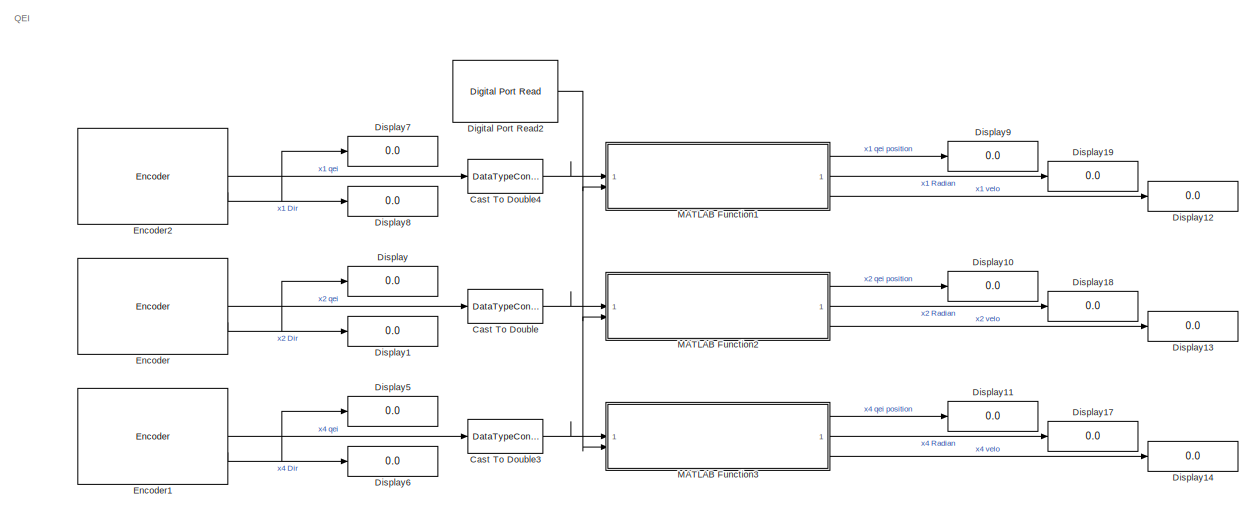
[diagram: root canvas - part 1/2, full width, top band]
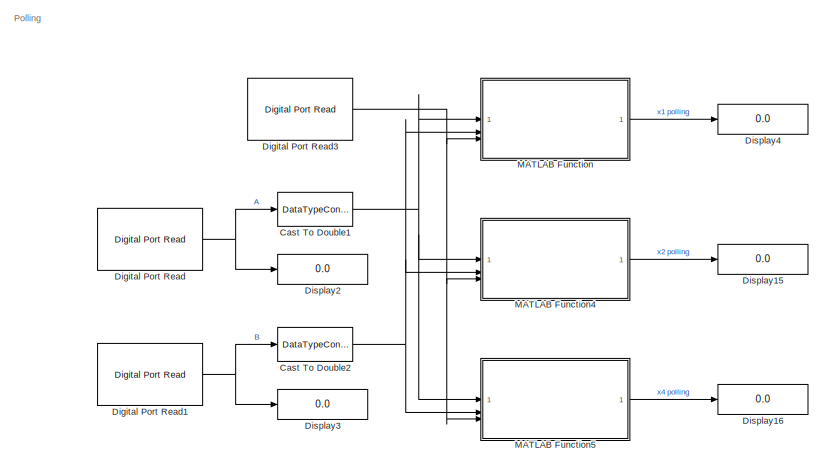
[diagram: root canvas - part 2/2, bottom left region]
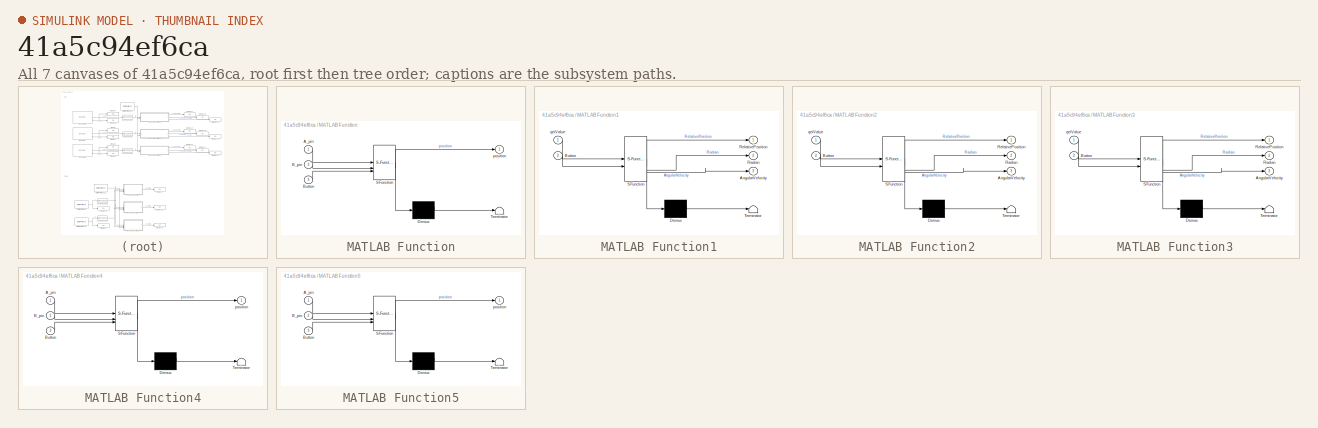
[diagram: thumbnail index - all 7 canvases of the model, root first then tree order]
MODEL slx_41a5c94ef6ca
KIND model
CONFIG AbsTol = auto
CONFIG EnableMultiTasking = on
CONFIG FixedStep = 0.01
CONFIG MaxStep = auto
CONFIG MinStep = auto
CONFIG RelTol = 1e-3
CONFIG SampleTimeConstraint = Unconstrained
CONFIG SolverName = FixedStepAuto
CONFIG StartTime = 0.0
CONFIG StopTime = inf
BLOCK [DataTypeConversion] Cast To Double
  OutDataTypeStr = double
  RndMeth = Floor
  SaturateOnIntegerOverflow = off
BLOCK [DataTypeConversion] Cast To Double1
  OutDataTypeStr = double
  RndMeth = Floor
  SaturateOnIntegerOverflow = off
BLOCK [DataTypeConversion] Cast To Double2
  OutDataTypeStr = double
  RndMeth = Floor
  SaturateOnIntegerOverflow = off
BLOCK [DataTypeConversion] Cast To Double3
  OutDataTypeStr = double
  RndMeth = Floor
  SaturateOnIntegerOverflow = off
BLOCK [DataTypeConversion] Cast To Double4
  OutDataTypeStr = double
  RndMeth = Floor
  SaturateOnIntegerOverflow = off
BLOCK [Reference] Digital Port Read  REF=stm32f4xxblockslib/Digital Port Read
  LibrarySourceBlock = stm32g4xxblockslib/Digital Port Read
  SourceBlock = stm32f4xxblockslib/Digital Port Read
  SourceType = stm32cube.blocks.DigitalPortRead
BLOCK [Reference] Digital Port Read1  REF=stm32f4xxblockslib/Digital Port Read
  LibrarySourceBlock = stm32g4xxblockslib/Digital Port Read
  SourceBlock = stm32f4xxblockslib/Digital Port Read
  SourceType = stm32cube.blocks.DigitalPortRead
BLOCK [Reference] Digital Port Read2  REF=stm32f4xxblockslib/Digital Port Read
  LibrarySourceBlock = stm32g4xxblockslib/Digital Port Read
  SourceBlock = stm32f4xxblockslib/Digital Port Read
  SourceType = stm32cube.blocks.DigitalPortRead
BLOCK [Reference] Digital Port Read3  REF=stm32f4xxblockslib/Digital Port Read
  LibrarySourceBlock = stm32g4xxblockslib/Digital Port Read
  SourceBlock = stm32f4xxblockslib/Digital Port Read
  SourceType = stm32cube.blocks.DigitalPortRead
BLOCK [Display] Display
  Decimation = 1
BLOCK [Display] Display1
  Decimation = 1
BLOCK [Display] Display10
  Decimation = 1
BLOCK [Display] Display11
  Decimation = 1
BLOCK [Display] Display12
  Decimation = 1
BLOCK [Display] Display13
  Decimation = 1
BLOCK [Display] Display14
  Decimation = 1
BLOCK [Display] Display15
  Decimation = 1
BLOCK [Display] Display16
  Decimation = 1
BLOCK [Display] Display17
  Decimation = 1
BLOCK [Display] Display18
  Decimation = 1
BLOCK [Display] Display19
  Decimation = 1
BLOCK [Display] Display2
  Decimation = 1
BLOCK [Display] Display3
  Decimation = 1
BLOCK [Display] Display4
  Decimation = 1
BLOCK [Display] Display5
  Decimation = 1
BLOCK [Display] Display6
  Decimation = 1
BLOCK [Display] Display7
  Decimation = 1
BLOCK [Display] Display8
  Decimation = 1
BLOCK [Display] Display9
  Decimation = 1
BLOCK [Reference] Encoder  REF=stm32g4xxblockslib/Encoder
  SourceBlock = stm32g4xxblockslib/Encoder
  SourceType = stm32cube.blocks.EncoderBlockForG4
BLOCK [Reference] Encoder1  REF=stm32g4xxblockslib/Encoder
  SourceBlock = stm32g4xxblockslib/Encoder
  SourceType = stm32cube.blocks.EncoderBlockForG4
BLOCK [Reference] Encoder2  REF=stm32g4xxblockslib/Encoder
  SourceBlock = stm32g4xxblockslib/Encoder
  SourceType = stm32cube.blocks.EncoderBlockForG4
BLOCK [SubSystem] MATLAB Function
  ErrorFcn = Stateflow.Translate.translate
  PermitHierarchicalResolution = ExplicitOnly
  SFBlockType = MATLAB Function
  TreatAsAtomicUnit = on
BLOCK [Demux] MATLAB Function/ Demux 
  Outputs = 1
BLOCK [S-Function] MATLAB Function/ SFunction 
  EnableBusSupport = on
  FunctionName = sf_sfun
  PortCounts = [3 2]
  SFcnIsStateOwnerBlock = off
  SFunctionDeploymentMode = off
  Tag = Stateflow S-Function 2
BLOCK [Terminator] MATLAB Function/ Terminator 
BLOCK [Inport] MATLAB Function/A_pin
BLOCK [Inport] MATLAB Function/B_pin
  Port = 2
BLOCK [Inport] MATLAB Function/Button
  Port = 3
BLOCK [Outport] MATLAB Function/position
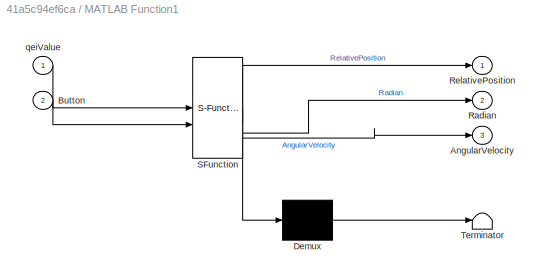
BLOCK [SubSystem] MATLAB Function1
  ErrorFcn = Stateflow.Translate.translate
  PermitHierarchicalResolution = ExplicitOnly
  SFBlockType = MATLAB Function
  TreatAsAtomicUnit = on
BLOCK [Demux] MATLAB Function1/ Demux 
  Outputs = 1
BLOCK [S-Function] MATLAB Function1/ SFunction 
  EnableBusSupport = on
  FunctionName = sf_sfun
  PortCounts = [2 4]
  SFcnIsStateOwnerBlock = off
  SFunctionDeploymentMode = off
  Tag = Stateflow S-Function 1
BLOCK [Terminator] MATLAB Function1/ Terminator 
BLOCK [Outport] MATLAB Function1/AngularVelocity
  Port = 3
BLOCK [Inport] MATLAB Function1/Button
  Port = 2
BLOCK [Outport] MATLAB Function1/Radian
  Port = 2
BLOCK [Outport] MATLAB Function1/RelativePosition
BLOCK [Inport] MATLAB Function1/qeiValue
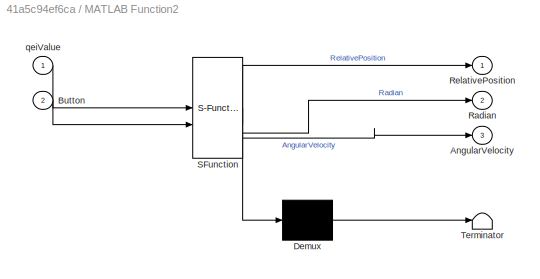
BLOCK [SubSystem] MATLAB Function2
  ErrorFcn = Stateflow.Translate.translate
  PermitHierarchicalResolution = ExplicitOnly
  SFBlockType = MATLAB Function
  TreatAsAtomicUnit = on
BLOCK [Demux] MATLAB Function2/ Demux 
  Outputs = 1
BLOCK [S-Function] MATLAB Function2/ SFunction 
  EnableBusSupport = on
  FunctionName = sf_sfun
  PortCounts = [2 4]
  SFcnIsStateOwnerBlock = off
  SFunctionDeploymentMode = off
  Tag = Stateflow S-Function 3
BLOCK [Terminator] MATLAB Function2/ Terminator 
BLOCK [Outport] MATLAB Function2/AngularVelocity
  Port = 3
BLOCK [Inport] MATLAB Function2/Button
  Port = 2
BLOCK [Outport] MATLAB Function2/Radian
  Port = 2
BLOCK [Outport] MATLAB Function2/RelativePosition
BLOCK [Inport] MATLAB Function2/qeiValue
BLOCK [SubSystem] MATLAB Function3
  ErrorFcn = Stateflow.Translate.translate
  PermitHierarchicalResolution = ExplicitOnly
  SFBlockType = MATLAB Function
  TreatAsAtomicUnit = on
BLOCK [Demux] MATLAB Function3/ Demux 
  Outputs = 1
BLOCK [S-Function] MATLAB Function3/ SFunction 
  EnableBusSupport = on
  FunctionName = sf_sfun
  PortCounts = [2 4]
  SFcnIsStateOwnerBlock = off
  SFunctionDeploymentMode = off
  Tag = Stateflow S-Function 4
BLOCK [Terminator] MATLAB Function3/ Terminator 
BLOCK [Outport] MATLAB Function3/AngularVelocity
  Port = 3
BLOCK [Inport] MATLAB Function3/Button
  Port = 2
BLOCK [Outport] MATLAB Function3/Radian
  Port = 2
BLOCK [Outport] MATLAB Function3/RelativePosition
BLOCK [Inport] MATLAB Function3/qeiValue
BLOCK [SubSystem] MATLAB Function4
  ErrorFcn = Stateflow.Translate.translate
  PermitHierarchicalResolution = ExplicitOnly
  SFBlockType = MATLAB Function
  TreatAsAtomicUnit = on
BLOCK [Demux] MATLAB Function4/ Demux 
  Outputs = 1
BLOCK [S-Function] MATLAB Function4/ SFunction 
  EnableBusSupport = on
  FunctionName = sf_sfun
  PortCounts = [3 2]
  SFcnIsStateOwnerBlock = off
  SFunctionDeploymentMode = off
  Tag = Stateflow S-Function 5
BLOCK [Terminator] MATLAB Function4/ Terminator 
BLOCK [Inport] MATLAB Function4/A_pin
BLOCK [Inport] MATLAB Function4/B_pin
  Port = 2
BLOCK [Inport] MATLAB Function4/Button
  Port = 3
BLOCK [Outport] MATLAB Function4/position
BLOCK [SubSystem] MATLAB Function5
  ErrorFcn = Stateflow.Translate.translate
  PermitHierarchicalResolution = ExplicitOnly
  SFBlockType = MATLAB Function
  TreatAsAtomicUnit = on
BLOCK [Demux] MATLAB Function5/ Demux 
  Outputs = 1
BLOCK [S-Function] MATLAB Function5/ SFunction 
  EnableBusSupport = on
  FunctionName = sf_sfun
  PortCounts = [3 2]
  SFcnIsStateOwnerBlock = off
  SFunctionDeploymentMode = off
  Tag = Stateflow S-Function 6
BLOCK [Terminator] MATLAB Function5/ Terminator 
BLOCK [Inport] MATLAB Function5/A_pin
BLOCK [Inport] MATLAB Function5/B_pin
  Port = 2
BLOCK [Inport] MATLAB Function5/Button
  Port = 3
BLOCK [Outport] MATLAB Function5/position
ANNOTATION (root): Polling
ANNOTATION (root): QEI
NET Cast To Double1:1 -> MATLAB Function4:1, MATLAB Function5:1, MATLAB Function:1
NET Cast To Double2:1 -> MATLAB Function4:2, MATLAB Function5:2, MATLAB Function:2
LINE Cast To Double3:1 -> MATLAB Function3:1
LINE Cast To Double4:1 -> MATLAB Function1:1
LINE Cast To Double:1 -> MATLAB Function2:1
NET Digital Port Read1:1 -> Cast To Double2:1, Display3:1
NET Digital Port Read2:1 -> MATLAB Function1:2, MATLAB Function2:2, MATLAB Function3:2
NET Digital Port Read3:1 -> MATLAB Function4:3, MATLAB Function5:3, MATLAB Function:3
NET Digital Port Read:1 -> Cast To Double1:1, Display2:1
NET Encoder1:1 -> Cast To Double3:1, Display5:1
LINE Encoder1:2 -> Display6:1
NET Encoder2:1 -> Cast To Double4:1, Display7:1
LINE Encoder2:2 -> Display8:1
NET Encoder:1 -> Cast To Double:1, Display:1
LINE Encoder:2 -> Display1:1
LINE MATLAB Function1:1 -> Display9:1
LINE MATLAB Function1:2 -> Display19:1
LINE MATLAB Function1:3 -> Display12:1
LINE MATLAB Function2:1 -> Display10:1
LINE MATLAB Function2:2 -> Display18:1
LINE MATLAB Function2:3 -> Display13:1
LINE MATLAB Function3:1 -> Display11:1
LINE MATLAB Function3:2 -> Display17:1
LINE MATLAB Function3:3 -> Display14:1
LINE MATLAB Function4:1 -> Display15:1
LINE MATLAB Function5:1 -> Display16:1
LINE MATLAB Function:1 -> Display4:1
note: NET lines group one-source signal fan-out (src -> all destinations, sorted); 1:1 wires keep LINE
CHART MATLAB Function1 states=1 transitions=1
  STATE_LABEL 'eML_blk_kernel()'
  STATE_LABEL 'SCRIPT:\nfunction [RelativePosition, Radian, AngularVelocity] = calculateQEI(qeiValue, Button)\n    % Maximum QEI counter\n    maxQEIValue = 65520;\n    \n    % Resolution of the encoder\n    encoderResolution = 24;\n\n    % x1\n    encoderResolution = encoderResolution * 1;\n    \n    % Fixed-step time of 0.01 seconds\n    fixedStepSize = 0.01; \n    \n    % Persistent variables\n    persistent prevQEIValue sig...<+1525ch>'
CHART MATLAB Function states=1 transitions=1
  STATE_LABEL 'eML_blk_kernel()'
  STATE_LABEL 'SCRIPT:\nfunction position = readEncoderX1(A_pin, B_pin, Button)\n    % Define persistent variables\n    persistent prevState pos;\n    \n    % Initialize persistent variables if they are empty\n    if isempty(prevState)\n        prevState = 0;\n        pos = 0;\n    end\n\n    % Read the current state of the encoder pins A and B\n    currentStateA = A_pin;\n    currentStateB = B_pin;\n\n    % Reset position if ...<+453ch>'
CHART MATLAB Function2 states=1 transitions=1
  STATE_LABEL 'eML_blk_kernel()'
  STATE_LABEL 'SCRIPT:\nfunction [RelativePosition, Radian, AngularVelocity] = calculateQEI(qeiValue, Button)\n    % Maximum QEI counter\n    maxQEIValue = 65520;\n    \n    % Resolution of the encoder\n    encoderResolution = 24;\n\n    % x2\n    encoderResolution = encoderResolution * 2;\n    \n    % Fixed-step time of 0.01 seconds\n    fixedStepSize = 0.01; \n    \n    % Persistent variables\n    persistent prevQEIValue sig...<+1525ch>'
CHART MATLAB Function3 states=1 transitions=1
  STATE_LABEL 'eML_blk_kernel()'
  STATE_LABEL 'SCRIPT:\nfunction [RelativePosition, Radian, AngularVelocity] = calculateQEI(qeiValue, Button)\n    % Maximum QEI counter\n    maxQEIValue = 65472;\n    \n    % Resolution of the encoder\n    encoderResolution = 24;\n\n    % x4\n    encoderResolution = encoderResolution * 4;\n    \n    % Fixed-step time of 0.01 seconds\n    fixedStepSize = 0.01; \n    \n    % Persistent variables\n    persistent prevQEIValue sig...<+1525ch>'
CHART MATLAB Function4 states=1 transitions=1
  STATE_LABEL 'eML_blk_kernel()'
  STATE_LABEL 'SCRIPT:\nfunction position = readEncoderX2(A_pin, B_pin, Button)\n    % Define persistent variables\n    persistent prevState pos;\n    \n    % Initialize persistent variables if they are empty\n    if isempty(prevState)\n        prevState = 0;\n        pos = 0;\n    end\n\n    % Read the current state of the encoder pins A and B\n    currentStateA = A_pin;\n    currentStateB = B_pin;\n\n    % Reset position if ...<+733ch>'
CHART MATLAB Function5 states=1 transitions=1
  STATE_LABEL 'eML_blk_kernel()'
  STATE_LABEL 'SCRIPT:\nfunction position = readEncoderX4(A_pin, B_pin, Button)\n    % Define persistent variables\n    persistent prevA prevB pos;\n    \n    % Initialize persistent variables if they are empty\n    if isempty(prevA)\n        prevA = 0;\n        prevB = 0;\n        pos = 0;\n    end\n\n    % Read the current state of the encoder pins A and B\n    currentA = A_pin;\n    currentB = B_pin;\n\n    % Reset position ...<+952ch>'
CHART  states=0 transitions=0
CHART  states=0 transitions=0
CHART  states=0 transitions=0
CHART  states=0 transitions=0
CHART  states=0 transitions=0
CHART  states=0 transitions=0
